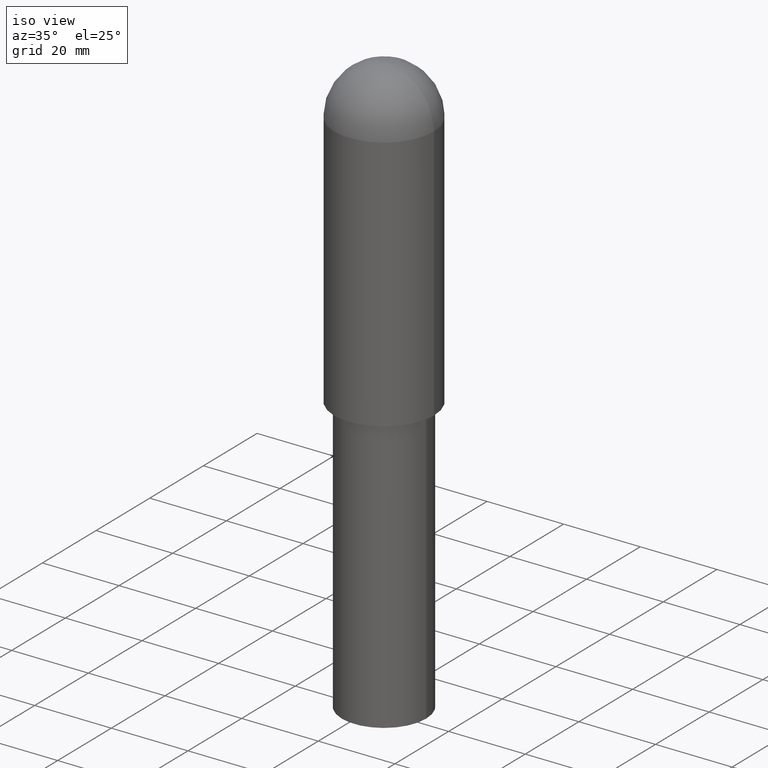
[diagram: clean part render]
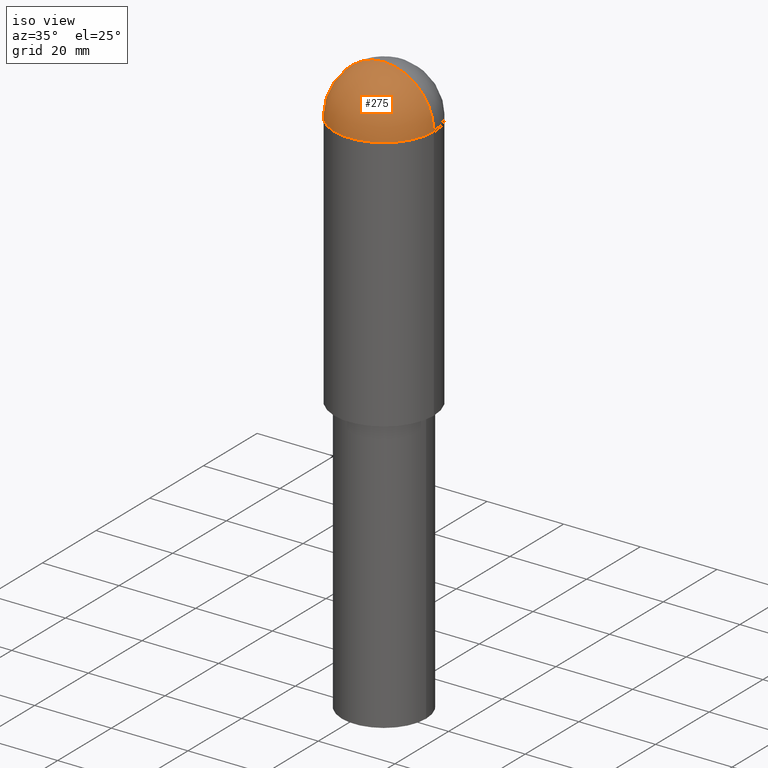
[diagram: same view with one face highlighted and labeled with its STEP entity id]
A machine part, iso view. The second image highlights one B-rep face of the part: STEP entity #275.
In plain terms, the highlighted spherical surface has radius 13 mm.
Its self-contained STEP definition (entity closure, byte-faithful):
#209=CARTESIAN_POINT('',(-8.716946060098081,-1.613904443833868,139.0));
#210=VERTEX_POINT('',#209);
#226=CARTESIAN_POINT('',(17.283053939901912,-1.613904443833868,139.0));
#227=VERTEX_POINT('',#226);
#234=CARTESIAN_POINT('',(4.283053939901916,-1.613904443833869,139.0));
#235=DIRECTION('',(0.0,0.0,1.0));
#236=DIRECTION('',(-1.0,0.0,0.0));
#237=AXIS2_PLACEMENT_3D('',#234,#235,#236);
#238=CIRCLE('',#237,12.999999999999998);
#239=EDGE_CURVE('',#210,#227,#238,.T.);
#249=CARTESIAN_POINT('',(4.283053939901916,-1.613904443833869,139.0));
#250=DIRECTION('',(0.0,-1.0,0.0));
#251=DIRECTION('',(0.0,0.0,1.0));
#252=AXIS2_PLACEMENT_3D('',#249,#250,#251);
#253=CIRCLE('',#252,13.0);
#254=EDGE_CURVE('',#227,#210,#253,.T.);
#266=CARTESIAN_POINT('',(4.283053939901916,-1.613904443833869,139.0));
#267=DIRECTION('',(0.0,0.0,1.0));
#268=DIRECTION('',(1.0,0.0,0.0));
#269=AXIS2_PLACEMENT_3D('',#266,#267,#268);
#270=SPHERICAL_SURFACE('',#269,13.0);
#271=ORIENTED_EDGE('',*,*,#254,.T.);
#272=ORIENTED_EDGE('',*,*,#239,.T.);
#273=EDGE_LOOP('',(#271,#272));
#274=FACE_OUTER_BOUND('',#273,.T.);
#275=ADVANCED_FACE('',(#274),#270,.T.);